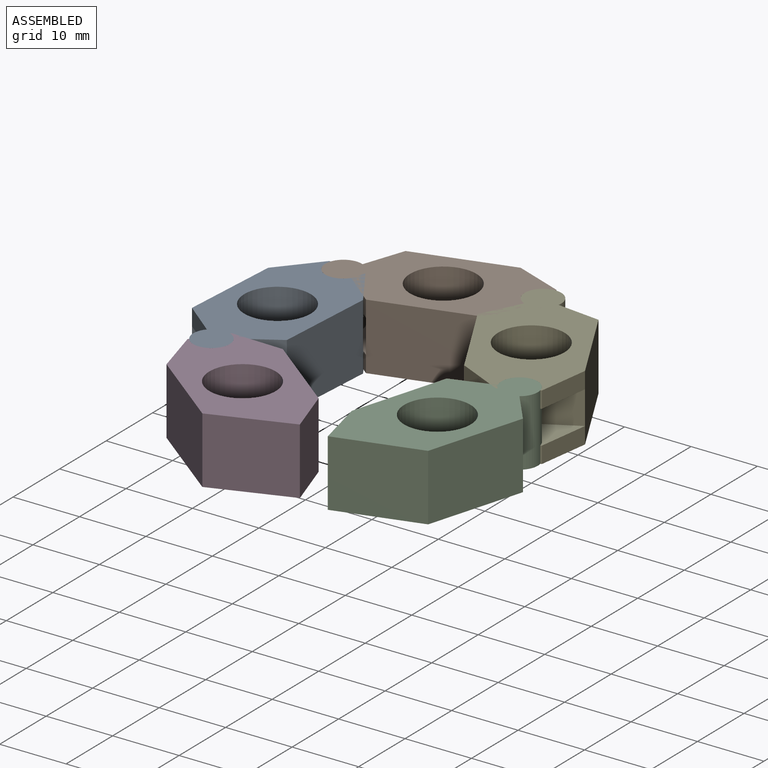
[diagram: assembled view]
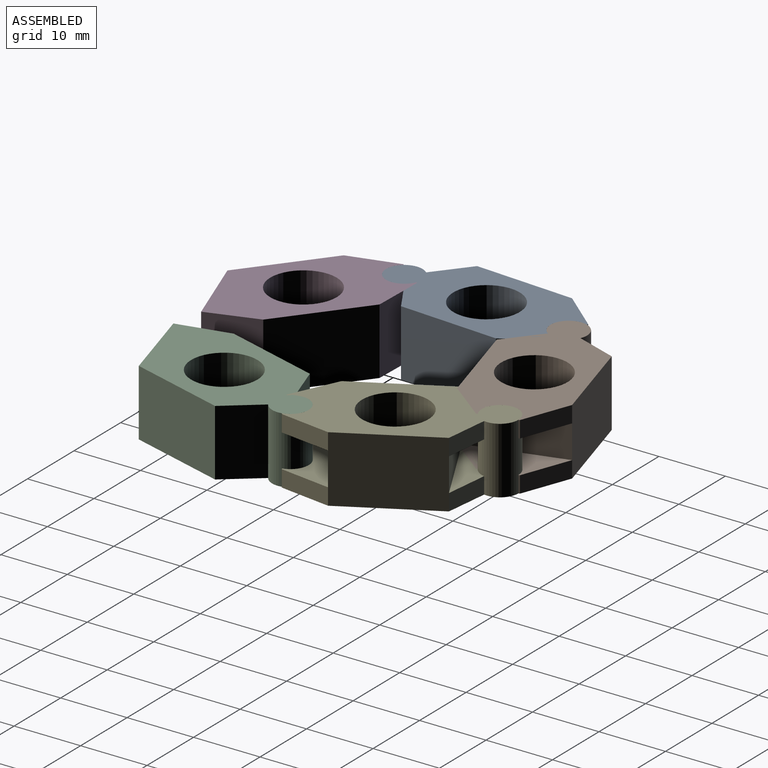
[diagram: assembled view, second angle]
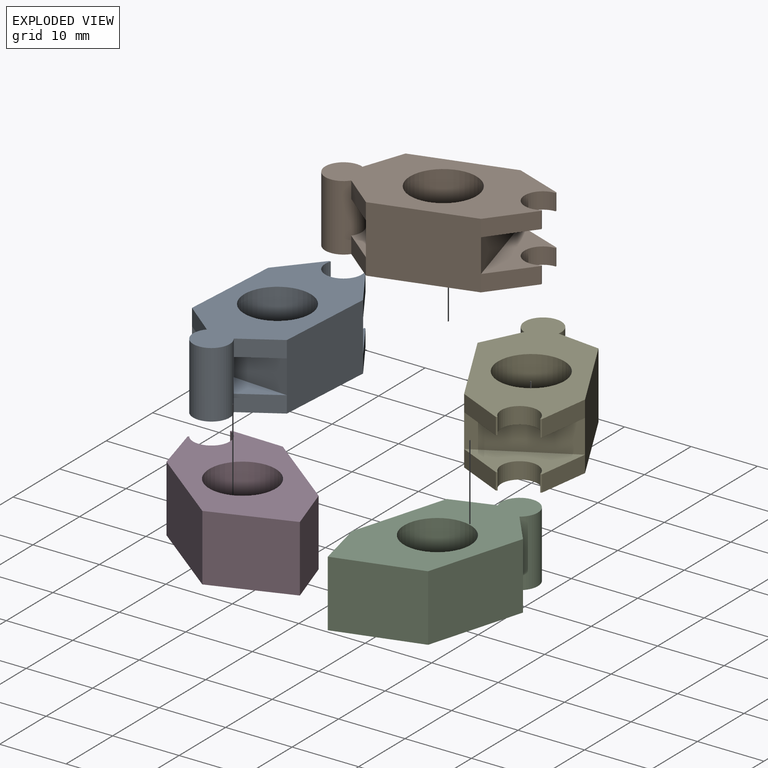
[diagram: exploded view]
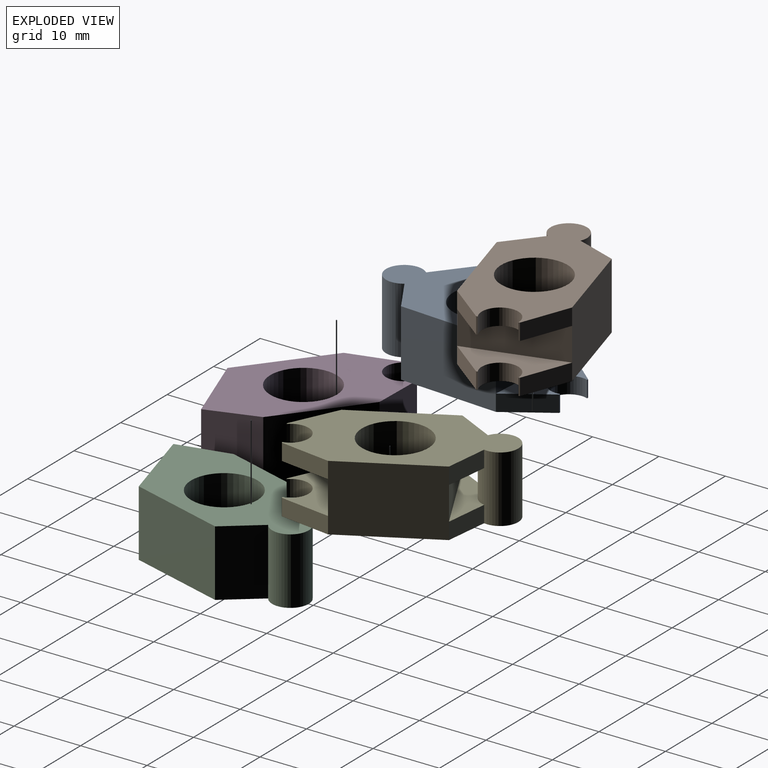
[diagram: exploded view, second angle]
ASSEMBLY  parts=5 mates=8
PART A: 26 faces, bbox 29.5x15x10 mm
  f0: plane 2.5x0.22mm, normal (1,0,0), area 0.5mm2, adj f10,f13,f15,f25
  f1: plane 2.5x0.22mm, normal (1,0,0), area 0.5mm2, adj f10,f12,f15,f25
  f2: plane 6.26x4.64mm, normal (0.6,0.8,0), area 19.5mm2, adj f7,f11,f16,f24
  f3: plane 6.26x4.64mm, normal (0.6,-0.8,0), area 19.5mm2, adj f8,f11,f14,f24
  f4: cylinder r=2.75mm len=5.5mm, axis (0,0,-1), area 25.5mm2, adj f11,f14,f16,f24
  f5: plane 5.37x3.76mm, normal (-0.82,0.57,0), area 16.4mm2, adj f7,f11,f18,f20
  f6: plane 5.37x3.76mm, normal (-0.82,-0.57,0), area 16.4mm2, adj f8,f11,f18,f20
  f7: plane 15x10mm, normal (0,1,0), area 150mm2, adj f2,f5,f10,f11,f12,f17,f22,f23
  f8: plane 15x10mm, normal (0,-1,0), area 150mm2, adj f3,f6,f10,f11,f13,f19,f22,f23
  f9: cylinder r=5mm len=10mm, axis (0,0,-1), area 314.2mm2, adj f10,f11
  f10: plane 29.51x15mm, normal (0,0,1), area 252.3mm2, adj f0,f1,f7,f8,f9,f12,f13,f15
  f11: plane 29.51x15mm, normal (0,0,-1), area 252.3mm2, adj f2,f3,f4,f5,f6,f7,f8,f9
  f12: plane 6.26x4.64mm, normal (0.6,0.8,0), area 19.5mm2, adj f1,f7,f10,f25
  f13: plane 6.26x4.64mm, normal (0.6,-0.8,0), area 19.5mm2, adj f0,f8,f10,f25
  f14: plane 2.5x0.22mm, normal (1,0,0), area 0.5mm2, adj f3,f4,f11,f24
  f15: cylinder r=2.75mm len=5.5mm, axis (0,0,-1), area 25.5mm2, adj f0,f1,f10,f25
  f16: plane 2.5x0.22mm, normal (1,0,0), area 0.5mm2, adj f2,f4,f11,f24
  f17: plane 5.37x3.76mm, normal (-0.82,0.57,0), area 16.4mm2, adj f7,f10,f18,f21
  f18: cylinder r=2.75mm len=10mm, axis (0,0,-1), area 148.4mm2, adj f5,f6,f10,f11,f17,f19,f20,f21
  f19: plane 5.37x3.76mm, normal (-0.82,-0.57,0), area 16.4mm2, adj f8,f10,f18,f21
  f20: plane 15x3.76mm, normal (0,0,1), area 33.2mm2, adj f5,f6,f18,f22
  f21: plane 15x3.76mm, normal (0,0,-1), area 33.2mm2, adj f17,f18,f19,f22
  f22: plane 15x5mm, normal (-1,0,0), area 75mm2, adj f7,f8,f20,f21
  f23: plane 15x5mm, normal (1,0,0), area 75mm2, adj f7,f8,f24,f25
  f24: plane 15x6.26mm, normal (0,0,1), area 48.8mm2, adj f2,f3,f4,f14,f16,f23
  f25: plane 15x6.26mm, normal (0,0,-1), area 48.8mm2, adj f0,f1,f12,f13,f15,f23
PART B: same geometry as A
PART C: 10 faces, bbox 30.2x15x10 mm
  f0: plane 15x10mm, normal (0,1,0), area 150mm2, adj f3,f4,f5,f8
  f1: plane 15x10mm, normal (0,-1,0), area 150mm2, adj f3,f4,f7,f9
  f2: cylinder r=5mm len=10mm, axis (0,0,-1), area 314.2mm2, adj f3,f4
  f3: plane 30.22x15mm, normal (0,0,1), area 255.7mm2, adj f0,f1,f2,f5,f6,f7,f8,f9
  f4: plane 30.22x15mm, normal (0,0,-1), area 255.7mm2, adj f0,f1,f2,f5,f6,f7,f8,f9
  f5: plane 10x5.37mm, normal (-0.82,0.57,0), area 65.6mm2, adj f0,f3,f4,f6
  f6: cylinder r=2.75mm len=10mm, axis (0,0,-1), area 124.1mm2, adj f3,f4,f5,f7
  f7: plane 10x5.37mm, normal (-0.82,-0.57,0), area 65.6mm2, adj f1,f3,f4,f6
  f8: plane 10x6.97mm, normal (0.49,0.87,0), area 80mm2, adj f0,f3,f4,f9
  f9: plane 11.07x10mm, normal (0.85,-0.53,0), area 130.8mm2, adj f1,f3,f4,f8
PART D: 12 faces, bbox 27.9x15x10 mm
  f0: plane 15x10mm, normal (0,1,0), area 150mm2, adj f3,f4,f5,f10
  f1: plane 15x10mm, normal (0,-1,0), area 150mm2, adj f3,f4,f6,f11
  f2: cylinder r=5mm len=10mm, axis (0,0,-1), area 314.2mm2, adj f3,f4
  f3: plane 27.9x15mm, normal (0,0,1), area 245.1mm2, adj f0,f1,f2,f5,f6,f7,f8,f9
  f4: plane 27.9x15mm, normal (0,0,-1), area 245.1mm2, adj f0,f1,f2,f5,f6,f7,f8,f9
  f5: plane 10x6.26mm, normal (0.6,0.8,0), area 77.9mm2, adj f0,f3,f4,f9
  f6: plane 10x6.26mm, normal (0.6,-0.8,0), area 77.9mm2, adj f1,f3,f4,f7
  f7: plane 10x0.22mm, normal (1,0,0), area 2.2mm2, adj f3,f4,f6,f8
  f8: cylinder r=2.75mm len=10mm, axis (0,0,-1), area 101.8mm2, adj f3,f4,f7,f9
  f9: plane 10x0.22mm, normal (1,0,0), area 2.2mm2, adj f3,f4,f5,f8
  f10: plane 10x6.64mm, normal (-0.56,0.83,0), area 80mm2, adj f0,f3,f4,f11
  f11: plane 10.54x10mm, normal (-0.85,-0.53,0), area 124.6mm2, adj f1,f3,f4,f10
PART E: same geometry as A
PLACE A rot(axis=(0,0,1),86.2deg) t=(18.89,41.3,-67.16)mm
PLACE B rot(axis=(0,0,1),16deg) t=(32.24,57.85,-67.16)mm
PLACE C rot(axis=(-0.6,0.8,0),180deg) t=(53.57,26.13,-67.16)mm
PLACE D rot(axis=(0.32,0.95,0),180deg) t=(28.3,20.35,-67.16)mm
PLACE E rot(axis=(0,0,-1),61.4deg) t=(50.97,50.03,-67.16)mm
MATE planar A.f10 <-> D.f4  axis (0,0,1) through (18.86,40.75,-62.16)mm
MATE cylindrical A.f4 <-> B.f18  axis (0,0,-1) through (19.75,54.27,-62.16)mm
MATE planar A.f10 <-> B.f10  axis (0,0,1) through (24.76,51.57,-62.16)mm
MATE cylindrical D.f8 <-> A.f18  axis (0,0,1) through (18.04,28.33,-62.16)mm
MATE cylindrical C.f6 <-> E.f4  axis (0,0,1) through (57.2,38.62,-67.16)mm
MATE cylindrical B.f4 <-> E.f18  axis (0,0,-1) through (44.74,61.44,-62.16)mm
MATE planar B.f10 <-> E.f10  axis (0,0,1) through (31.71,57.7,-62.16)mm
MATE planar C.f4 <-> E.f10  axis (0,0,1) through (58.76,36.35,-62.16)mm
